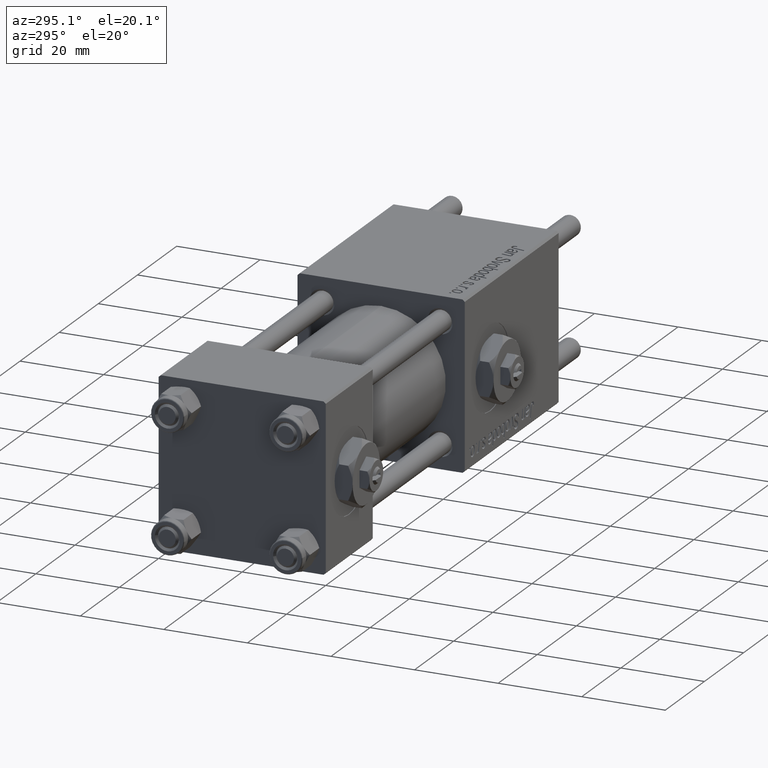
[diagram: clean part render]
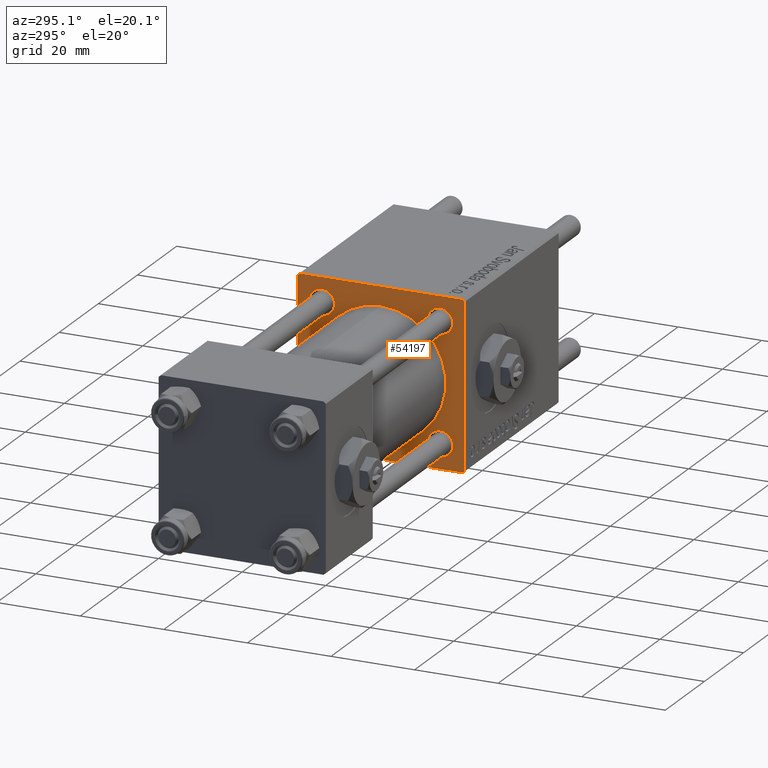
[diagram: same view with one face highlighted and labeled with its STEP entity id]
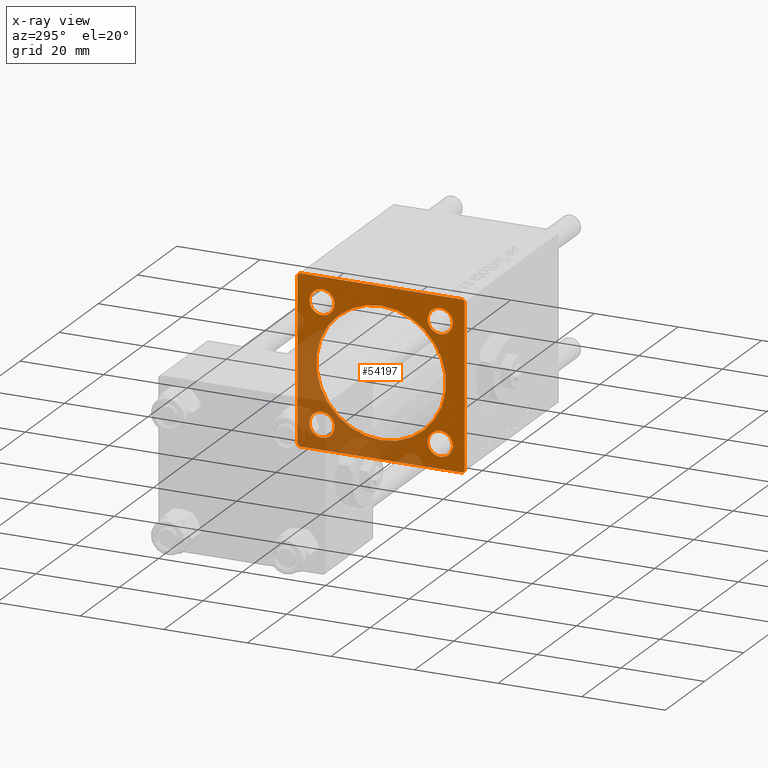
[diagram: x-ray of the same camera — body ghosted, the highlighted face saturated]
A machine part, auxiliary view. The second image highlights one B-rep face of the part: STEP entity #54197.
The next image is the same camera in x-ray: the body ghosted, the highlighted face saturated — about 33% of this face is hidden behind the body in this view.
In plain terms, the highlighted planar face has unit normal (-1, 0, 0).
Its self-contained STEP definition (entity closure, byte-faithful):
#1407 = VERTEX_POINT ( 'NONE', #11301 ) ;
#1458 = EDGE_CURVE ( 'NONE', #3749, #9849, #24730, .T. ) ;
#1592 = CARTESIAN_POINT ( 'NONE',  ( 71.00000000000001421, 19.74999999999999645, -19.74999999999999645 ) ) ;
#1803 = AXIS2_PLACEMENT_3D ( 'NONE', #34587, #34874, #30695 ) ;
#2172 = CIRCLE ( 'NONE', #5002, 3.000000000000000888 ) ;
#2278 = CARTESIAN_POINT ( 'NONE',  ( 71.00000000000001421, -20.00000000000000355, 19.99999999999999645 ) ) ;
#3294 = EDGE_LOOP ( 'NONE', ( #4614, #47644 ) ) ;
#3749 = VERTEX_POINT ( 'NONE', #11577 ) ;
#3932 = DIRECTION ( 'NONE',  ( 1.000000000000000000, 0.000000000000000000, 0.000000000000000000 ) ) ;
#4408 = DIRECTION ( 'NONE',  ( 0.000000000000000000, 0.000000000000000000, 1.000000000000000000 ) ) ;
#4614 = ORIENTED_EDGE ( 'NONE', *, *, #22141, .T. ) ;
#4906 = EDGE_LOOP ( 'NONE', ( #12923, #23725 ) ) ;
#5002 = AXIS2_PLACEMENT_3D ( 'NONE', #20352, #56643, #51598 ) ;
#5532 = EDGE_CURVE ( 'NONE', #1407, #50569, #25047, .T. ) ;
#5547 = VERTEX_POINT ( 'NONE', #28928 ) ;
#5857 = EDGE_LOOP ( 'NONE', ( #55408, #6730 ) ) ;
#6664 = VERTEX_POINT ( 'NONE', #37793 ) ;
#6730 = ORIENTED_EDGE ( 'NONE', *, *, #39744, .T. ) ;
#7469 = EDGE_CURVE ( 'NONE', #5547, #3749, #21545, .T. ) ;
#7683 = AXIS2_PLACEMENT_3D ( 'NONE', #26561, #3932, #54195 ) ;
#7972 = DIRECTION ( 'NONE',  ( 0.000000000000000000, 0.000000000000000000, 1.000000000000000000 ) ) ;
#8121 = VERTEX_POINT ( 'NONE', #35971 ) ;
#8141 = EDGE_CURVE ( 'NONE', #32245, #8121, #29242, .T. ) ;
#8281 = CARTESIAN_POINT ( 'NONE',  ( 71.00000000000001421, -14.15000000000000036, -14.15000000000000036 ) ) ;
#8388 = ORIENTED_EDGE ( 'NONE', *, *, #44224, .T. ) ;
#8696 = CARTESIAN_POINT ( 'NONE',  ( 71.00000000000001421, 19.99999999999999645, 20.00000000000000000 ) ) ;
#8843 = FACE_BOUND ( 'NONE', #3294, .T. ) ;
#9088 = EDGE_CURVE ( 'NONE', #22044, #29325, #30315, .T. ) ;
#9145 = FACE_BOUND ( 'NONE', #21173, .T. ) ;
#9849 = VERTEX_POINT ( 'NONE', #26122 ) ;
#10371 = DIRECTION ( 'NONE',  ( 1.000000000000000000, 0.000000000000000000, 0.000000000000000000 ) ) ;
#11301 = CARTESIAN_POINT ( 'NONE',  ( 71.00000000000001421, 19.49999999999999645, -20.00000000000000000 ) ) ;
#11577 = CARTESIAN_POINT ( 'NONE',  ( 71.00000000000001421, 19.99999999999999645, 19.49999999999998579 ) ) ;
#11866 = CARTESIAN_POINT ( 'NONE',  ( 71.00000000000001421, 14.15000000000000036, 14.15000000000000036 ) ) ;
#11917 = DIRECTION ( 'NONE',  ( 0.000000000000000000, -1.000000000000000000, 0.000000000000000000 ) ) ;
#12291 = AXIS2_PLACEMENT_3D ( 'NONE', #23933, #15276, #24525 ) ;
#12412 = AXIS2_PLACEMENT_3D ( 'NONE', #43615, #34709, #39736 ) ;
#12923 = ORIENTED_EDGE ( 'NONE', *, *, #33977, .T. ) ;
#13252 = CIRCLE ( 'NONE', #12291, 3.000000000000004441 ) ;
#13426 = EDGE_CURVE ( 'NONE', #29815, #34872, #31606, .T. ) ;
#14278 = CIRCLE ( 'NONE', #12412, 2.999999999999976463 ) ;
#14732 = EDGE_CURVE ( 'NONE', #5547, #34872, #21548, .T. ) ;
#15203 = CARTESIAN_POINT ( 'NONE',  ( 71.00000000000001421, 14.15000000000000036, 17.15000000000000568 ) ) ;
#15276 = DIRECTION ( 'NONE',  ( 1.000000000000000000, 0.000000000000000000, 0.000000000000000000 ) ) ;
#15521 = CARTESIAN_POINT ( 'NONE',  ( 71.00000000000001421, -20.00000000000000000, -19.50000000000001066 ) ) ;
#15859 = CARTESIAN_POINT ( 'NONE',  ( 71.00000000000001421, -2.602085213965210642E-15, 15.50000000000000000 ) ) ;
#17082 = EDGE_CURVE ( 'NONE', #8121, #32245, #42822, .T. ) ;
#17635 = CARTESIAN_POINT ( 'NONE',  ( 71.00000000000001421, 19.74999999999971578, 19.75000000000026290 ) ) ;
#18765 = AXIS2_PLACEMENT_3D ( 'NONE', #11866, #49041, #7972 ) ;
#19716 = AXIS2_PLACEMENT_3D ( 'NONE', #8281, #26757, #4408 ) ;
#20280 = CARTESIAN_POINT ( 'NONE',  ( 71.00000000000001421, 19.99999999999999645, -20.00000000000000000 ) ) ;
#20352 = CARTESIAN_POINT ( 'NONE',  ( 71.00000000000001421, 14.15000000000000036, 14.15000000000000036 ) ) ;
#20546 = DIRECTION ( 'NONE',  ( 0.000000000000000000, 0.000000000000000000, -1.000000000000000000 ) ) ;
#21173 = EDGE_LOOP ( 'NONE', ( #23532, #28712 ) ) ;
#21545 = LINE ( 'NONE', #17635, #26388 ) ;
#21548 = LINE ( 'NONE', #8696, #27583 ) ;
#21826 = DIRECTION ( 'NONE',  ( 0.000000000000000000, -1.000000000000000000, -8.673617379884035472E-17 ) ) ;
#21838 = VECTOR ( 'NONE', #41707, 1000.000000000000114 ) ;
#22044 = VERTEX_POINT ( 'NONE', #45362 ) ;
#22141 = EDGE_CURVE ( 'NONE', #56588, #44055, #2172, .T. ) ;
#23446 = VECTOR ( 'NONE', #54555, 1000.000000000000114 ) ;
#23454 = VECTOR ( 'NONE', #20546, 1000.000000000000000 ) ;
#23532 = ORIENTED_EDGE ( 'NONE', *, *, #56260, .T. ) ;
#23576 = EDGE_LOOP ( 'NONE', ( #30617, #52841 ) ) ;
#23654 = AXIS2_PLACEMENT_3D ( 'NONE', #45082, #32000, #27542 ) ;
#23725 = ORIENTED_EDGE ( 'NONE', *, *, #58467, .T. ) ;
#23933 = CARTESIAN_POINT ( 'NONE',  ( 71.00000000000001421, -14.15000000000000036, 14.15000000000000036 ) ) ;
#24240 = ORIENTED_EDGE ( 'NONE', *, *, #13426, .T. ) ;
#24381 = CARTESIAN_POINT ( 'NONE',  ( 71.00000000000001421, 14.15000000000000036, -14.15000000000000036 ) ) ;
#24525 = DIRECTION ( 'NONE',  ( 0.000000000000000000, 0.000000000000000000, 1.000000000000000000 ) ) ;
#24691 = LINE ( 'NONE', #53133, #29715 ) ;
#24730 = LINE ( 'NONE', #47618, #23454 ) ;
#25047 = LINE ( 'NONE', #20280, #51946 ) ;
#25433 = DIRECTION ( 'NONE',  ( 0.000000000000000000, 0.7071067811865574537, -0.7071067811865376918 ) ) ;
#26011 = ORIENTED_EDGE ( 'NONE', *, *, #14732, .F. ) ;
#26122 = CARTESIAN_POINT ( 'NONE',  ( 71.00000000000001421, 19.99999999999999645, -19.50000000000000000 ) ) ;
#26284 = EDGE_CURVE ( 'NONE', #50569, #30689, #24691, .T. ) ;
#26388 = VECTOR ( 'NONE', #25433, 999.9999999999998863 ) ;
#26561 = CARTESIAN_POINT ( 'NONE',  ( 71.00000000000001421, -14.15000000000000036, -14.15000000000000036 ) ) ;
#26700 = DIRECTION ( 'NONE',  ( 1.000000000000000000, 0.000000000000000000, 0.000000000000000000 ) ) ;
#26757 = DIRECTION ( 'NONE',  ( 1.000000000000000000, 0.000000000000000000, 0.000000000000000000 ) ) ;
#26993 = CARTESIAN_POINT ( 'NONE',  ( 71.00000000000001421, -14.15000000000000036, 17.15000000000000568 ) ) ;
#27542 = DIRECTION ( 'NONE',  ( 0.000000000000000000, 0.000000000000000000, -1.000000000000000000 ) ) ;
#27583 = VECTOR ( 'NONE', #21826, 1000.000000000000000 ) ;
#27692 = ORIENTED_EDGE ( 'NONE', *, *, #1458, .T. ) ;
#28712 = ORIENTED_EDGE ( 'NONE', *, *, #9088, .T. ) ;
#28857 = EDGE_LOOP ( 'NONE', ( #44861, #51315, #47055, #24240, #26011, #32261, #27692, #8388 ) ) ;
#28928 = CARTESIAN_POINT ( 'NONE',  ( 71.00000000000001421, 19.49999999999996803, 20.00000000000000000 ) ) ;
#29242 = CIRCLE ( 'NONE', #19716, 2.999999999999976463 ) ;
#29325 = VERTEX_POINT ( 'NONE', #26993 ) ;
#29389 = AXIS2_PLACEMENT_3D ( 'NONE', #54633, #26700, #44827 ) ;
#29715 = VECTOR ( 'NONE', #38362, 999.9999999999998863 ) ;
#29815 = VERTEX_POINT ( 'NONE', #49449 ) ;
#30315 = CIRCLE ( 'NONE', #29389, 3.000000000000004441 ) ;
#30321 = VECTOR ( 'NONE', #34431, 1000.000000000000000 ) ;
#30617 = ORIENTED_EDGE ( 'NONE', *, *, #17082, .T. ) ;
#30689 = VERTEX_POINT ( 'NONE', #15521 ) ;
#30695 = DIRECTION ( 'NONE',  ( -0.000000000000000000, 0.000000000000000000, 1.000000000000000000 ) ) ;
#31606 = LINE ( 'NONE', #46177, #21838 ) ;
#31773 = FACE_OUTER_BOUND ( 'NONE', #28857, .T. ) ;
#32000 = DIRECTION ( 'NONE',  ( 1.000000000000000000, 0.000000000000000000, 0.000000000000000000 ) ) ;
#32245 = VERTEX_POINT ( 'NONE', #54104 ) ;
#32261 = ORIENTED_EDGE ( 'NONE', *, *, #7469, .T. ) ;
#32414 = DIRECTION ( 'NONE',  ( 0.000000000000000000, 0.000000000000000000, 1.000000000000000000 ) ) ;
#33594 = CARTESIAN_POINT ( 'NONE',  ( 71.00000000000001421, 14.15000000000000036, -17.14999999999997726 ) ) ;
#33977 = EDGE_CURVE ( 'NONE', #45214, #49626, #58425, .T. ) ;
#34431 = DIRECTION ( 'NONE',  ( 0.000000000000000000, 8.673617379884036705E-17, -1.000000000000000000 ) ) ;
#34587 = CARTESIAN_POINT ( 'NONE',  ( 71.00000000000001421, 0.000000000000000000, 0.000000000000000000 ) ) ;
#34709 = DIRECTION ( 'NONE',  ( 1.000000000000000000, 0.000000000000000000, 0.000000000000000000 ) ) ;
#34872 = VERTEX_POINT ( 'NONE', #43364 ) ;
#34874 = DIRECTION ( 'NONE',  ( -1.000000000000000000, 0.000000000000000000, -0.000000000000000000 ) ) ;
#35971 = CARTESIAN_POINT ( 'NONE',  ( 71.00000000000001421, -14.15000000000000036, -11.15000000000002522 ) ) ;
#36717 = LINE ( 'NONE', #1592, #23446 ) ;
#37660 = VERTEX_POINT ( 'NONE', #15859 ) ;
#37793 = CARTESIAN_POINT ( 'NONE',  ( 71.00000000000001421, -7.038826752868131828E-16, -15.50000000000000000 ) ) ;
#37925 = DIRECTION ( 'NONE',  ( 1.000000000000000000, 0.000000000000000000, 0.000000000000000000 ) ) ;
#38238 = CARTESIAN_POINT ( 'NONE',  ( 71.00000000000001421, 14.15000000000000036, -11.15000000000002522 ) ) ;
#38362 = DIRECTION ( 'NONE',  ( 0.000000000000000000, -0.7071067811865376918, 0.7071067811865574537 ) ) ;
#38738 = FACE_BOUND ( 'NONE', #5857, .T. ) ;
#39137 = CARTESIAN_POINT ( 'NONE',  ( 71.00000000000001421, 14.15000000000000036, 11.14999999999999858 ) ) ;
#39736 = DIRECTION ( 'NONE',  ( 0.000000000000000000, 0.000000000000000000, 1.000000000000000000 ) ) ;
#39744 = EDGE_CURVE ( 'NONE', #6664, #37660, #43452, .T. ) ;
#40533 = AXIS2_PLACEMENT_3D ( 'NONE', #56944, #37925, #56069 ) ;
#40579 = CIRCLE ( 'NONE', #18765, 3.000000000000000888 ) ;
#41396 = EDGE_CURVE ( 'NONE', #44055, #56588, #40579, .T. ) ;
#41707 = DIRECTION ( 'NONE',  ( -0.000000000000000000, 0.7071067811865573427, 0.7071067811865376918 ) ) ;
#42822 = CIRCLE ( 'NONE', #7683, 2.999999999999976463 ) ;
#43048 = LINE ( 'NONE', #2278, #30321 ) ;
#43364 = CARTESIAN_POINT ( 'NONE',  ( 71.00000000000001421, -19.50000000000001776, 19.99999999999999645 ) ) ;
#43452 = CIRCLE ( 'NONE', #40533, 15.50000000000000000 ) ;
#43615 = CARTESIAN_POINT ( 'NONE',  ( 71.00000000000001421, 14.15000000000000036, -14.15000000000000036 ) ) ;
#44055 = VERTEX_POINT ( 'NONE', #39137 ) ;
#44224 = EDGE_CURVE ( 'NONE', #9849, #1407, #36717, .T. ) ;
#44827 = DIRECTION ( 'NONE',  ( 0.000000000000000000, 0.000000000000000000, 1.000000000000000000 ) ) ;
#44861 = ORIENTED_EDGE ( 'NONE', *, *, #5532, .T. ) ;
#45082 = CARTESIAN_POINT ( 'NONE',  ( 71.00000000000001421, -2.602085213965210642E-15, 0.000000000000000000 ) ) ;
#45214 = VERTEX_POINT ( 'NONE', #38238 ) ;
#45362 = CARTESIAN_POINT ( 'NONE',  ( 71.00000000000001421, -14.15000000000000036, 11.14999999999999858 ) ) ;
#46177 = CARTESIAN_POINT ( 'NONE',  ( 71.00000000000001421, -19.74999999999973710, 19.75000000000028422 ) ) ;
#47055 = ORIENTED_EDGE ( 'NONE', *, *, #53547, .F. ) ;
#47618 = CARTESIAN_POINT ( 'NONE',  ( 71.00000000000001421, 19.99999999999999645, 20.00000000000000000 ) ) ;
#47644 = ORIENTED_EDGE ( 'NONE', *, *, #41396, .T. ) ;
#47961 = PLANE ( 'NONE',  #1803 ) ;
#49041 = DIRECTION ( 'NONE',  ( 1.000000000000000000, 0.000000000000000000, 0.000000000000000000 ) ) ;
#49449 = CARTESIAN_POINT ( 'NONE',  ( 71.00000000000001421, -20.00000000000000355, 19.50000000000002487 ) ) ;
#49625 = FACE_BOUND ( 'NONE', #23576, .T. ) ;
#49626 = VERTEX_POINT ( 'NONE', #33594 ) ;
#50569 = VERTEX_POINT ( 'NONE', #57243 ) ;
#51315 = ORIENTED_EDGE ( 'NONE', *, *, #26284, .T. ) ;
#51598 = DIRECTION ( 'NONE',  ( 0.000000000000000000, 0.000000000000000000, 1.000000000000000000 ) ) ;
#51819 = AXIS2_PLACEMENT_3D ( 'NONE', #24381, #10371, #32414 ) ;
#51946 = VECTOR ( 'NONE', #11917, 1000.000000000000000 ) ;
#52841 = ORIENTED_EDGE ( 'NONE', *, *, #8141, .T. ) ;
#53133 = CARTESIAN_POINT ( 'NONE',  ( 71.00000000000001421, -19.75000000000028066, -19.74999999999973355 ) ) ;
#53547 = EDGE_CURVE ( 'NONE', #29815, #30689, #43048, .T. ) ;
#53626 = EDGE_CURVE ( 'NONE', #37660, #6664, #58791, .T. ) ;
#54104 = CARTESIAN_POINT ( 'NONE',  ( 71.00000000000001421, -14.15000000000000036, -17.14999999999997726 ) ) ;
#54195 = DIRECTION ( 'NONE',  ( 0.000000000000000000, 0.000000000000000000, 1.000000000000000000 ) ) ;
#54197 = ADVANCED_FACE ( 'NONE', ( #9145, #8843, #57758, #49625, #38738, #31773 ), #47961, .T. ) ;
#54555 = DIRECTION ( 'NONE',  ( -0.000000000000000000, -0.7071067811865474617, -0.7071067811865474617 ) ) ;
#54633 = CARTESIAN_POINT ( 'NONE',  ( 71.00000000000001421, -14.15000000000000036, 14.15000000000000036 ) ) ;
#55408 = ORIENTED_EDGE ( 'NONE', *, *, #53626, .T. ) ;
#56069 = DIRECTION ( 'NONE',  ( 0.000000000000000000, 0.000000000000000000, -1.000000000000000000 ) ) ;
#56260 = EDGE_CURVE ( 'NONE', #29325, #22044, #13252, .T. ) ;
#56588 = VERTEX_POINT ( 'NONE', #15203 ) ;
#56643 = DIRECTION ( 'NONE',  ( 1.000000000000000000, 0.000000000000000000, 0.000000000000000000 ) ) ;
#56944 = CARTESIAN_POINT ( 'NONE',  ( 71.00000000000001421, -2.602085213965210642E-15, 0.000000000000000000 ) ) ;
#57243 = CARTESIAN_POINT ( 'NONE',  ( 71.00000000000001421, -19.50000000000002487, -20.00000000000000000 ) ) ;
#57758 = FACE_BOUND ( 'NONE', #4906, .T. ) ;
#58425 = CIRCLE ( 'NONE', #51819, 2.999999999999976463 ) ;
#58467 = EDGE_CURVE ( 'NONE', #49626, #45214, #14278, .T. ) ;
#58791 = CIRCLE ( 'NONE', #23654, 15.50000000000000000 ) ;